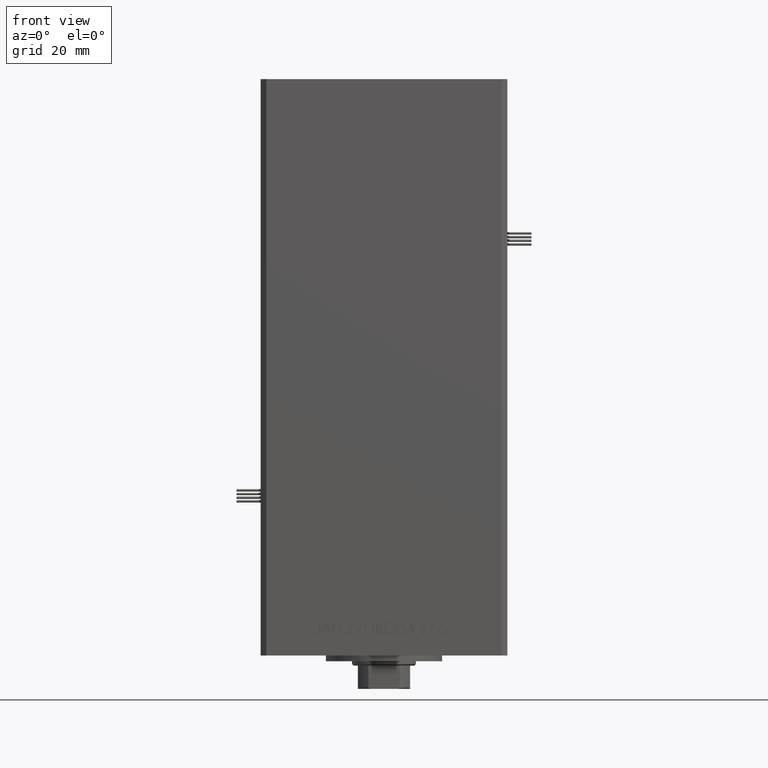
[diagram: clean part render]
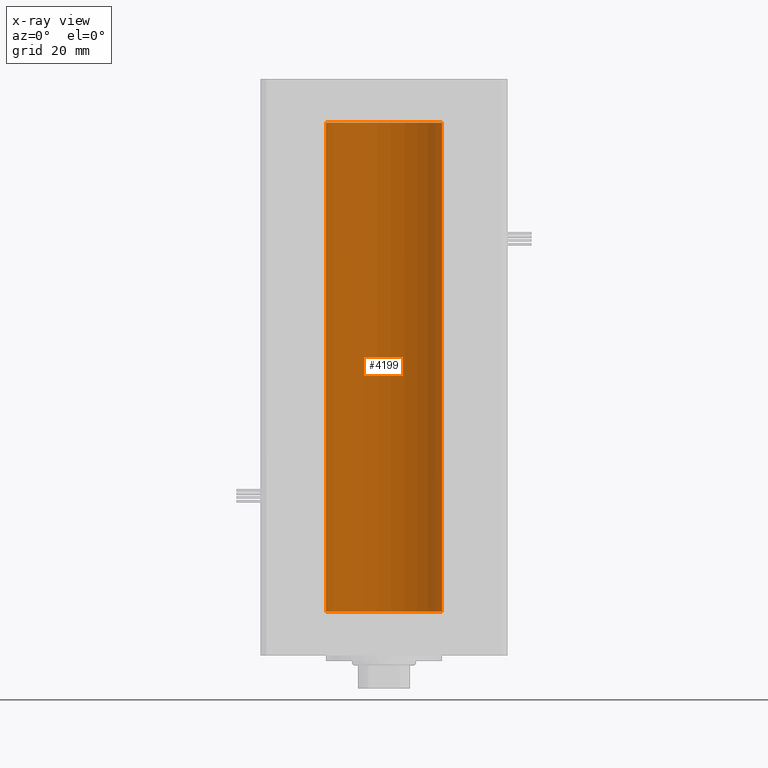
[diagram: x-ray — body ghosted, one internal face saturated and labeled with its STEP entity id]
A machine part, front view, then the same camera in x-ray: the body is ghosted and one INTERNAL B-rep face — a face not visible from any outside direction — is saturated and labeled: STEP entity #4199.
In plain terms, the highlighted cylindrical surface (partial cylindrical patch) has radius 20 mm, axis along (-0, -0, -1).
Its self-contained STEP definition (entity closure, byte-faithful):
#540 = AXIS2_PLACEMENT_3D ( 'NONE', #26419, #39032, #22470 ) ;
#961 = ORIENTED_EDGE ( 'NONE', *, *, #12802, .T. ) ;
#1178 = DIRECTION ( 'NONE',  ( 1.000000000000000000, 0.000000000000000000, 0.000000000000000000 ) ) ;
#1774 = AXIS2_PLACEMENT_3D ( 'NONE', #40862, #45592, #1178 ) ;
#2117 = DIRECTION ( 'NONE',  ( -1.000000000000000000, 0.000000000000000000, 0.000000000000000000 ) ) ;
#2399 = EDGE_CURVE ( 'NONE', #5721, #8705, #8938, .T. ) ;
#4199 = ADVANCED_FACE ( 'NONE', ( #30004 ), #50205, .F. ) ;
#5721 = VERTEX_POINT ( 'NONE', #48578 ) ;
#8705 = VERTEX_POINT ( 'NONE', #19003 ) ;
#8938 = CIRCLE ( 'NONE', #540, 20.00000000000000000 ) ;
#12461 = EDGE_CURVE ( 'NONE', #5721, #44559, #14521, .T. ) ;
#12683 = CIRCLE ( 'NONE', #1774, 20.00000000000000000 ) ;
#12802 = EDGE_CURVE ( 'NONE', #8705, #45498, #35206, .T. ) ;
#13893 = ORIENTED_EDGE ( 'NONE', *, *, #2399, .T. ) ;
#14084 = CARTESIAN_POINT ( 'NONE',  ( -20.00000000000000000, 0.000000000000000000, 0.000000000000000000 ) ) ;
#14521 = LINE ( 'NONE', #42125, #42772 ) ;
#14770 = DIRECTION ( 'NONE',  ( -0.000000000000000000, -0.000000000000000000, -1.000000000000000000 ) ) ;
#15217 = CARTESIAN_POINT ( 'NONE',  ( -20.00000000000000000, 0.000000000000000000, 168.5000000000000000 ) ) ;
#15487 = EDGE_CURVE ( 'NONE', #44559, #45498, #12683, .T. ) ;
#19003 = CARTESIAN_POINT ( 'NONE',  ( -20.00000000000000000, 0.000000000000000000, 168.5000000000000000 ) ) ;
#19305 = ORIENTED_EDGE ( 'NONE', *, *, #15487, .F. ) ;
#19404 = DIRECTION ( 'NONE',  ( -0.000000000000000000, -0.000000000000000000, -1.000000000000000000 ) ) ;
#20074 = ORIENTED_EDGE ( 'NONE', *, *, #12461, .F. ) ;
#22470 = DIRECTION ( 'NONE',  ( 1.000000000000000000, 0.000000000000000000, 0.000000000000000000 ) ) ;
#26419 = CARTESIAN_POINT ( 'NONE',  ( 0.000000000000000000, 0.000000000000000000, 168.5000000000000000 ) ) ;
#30004 = FACE_OUTER_BOUND ( 'NONE', #39403, .T. ) ;
#30182 = CARTESIAN_POINT ( 'NONE',  ( 20.00000000000000000, 2.449293598294706513E-15, 0.000000000000000000 ) ) ;
#30225 = VECTOR ( 'NONE', #19404, 1000.000000000000000 ) ;
#35206 = LINE ( 'NONE', #15217, #30225 ) ;
#39032 = DIRECTION ( 'NONE',  ( -0.000000000000000000, 0.000000000000000000, 1.000000000000000000 ) ) ;
#39403 = EDGE_LOOP ( 'NONE', ( #20074, #13893, #961, #19305 ) ) ;
#40862 = CARTESIAN_POINT ( 'NONE',  ( 0.000000000000000000, 0.000000000000000000, 0.000000000000000000 ) ) ;
#42125 = CARTESIAN_POINT ( 'NONE',  ( 20.00000000000000000, 2.449293598294706513E-15, 168.5000000000000000 ) ) ;
#42772 = VECTOR ( 'NONE', #14770, 1000.000000000000000 ) ;
#44559 = VERTEX_POINT ( 'NONE', #30182 ) ;
#45498 = VERTEX_POINT ( 'NONE', #14084 ) ;
#45592 = DIRECTION ( 'NONE',  ( -0.000000000000000000, 0.000000000000000000, 1.000000000000000000 ) ) ;
#46274 = CARTESIAN_POINT ( 'NONE',  ( 0.000000000000000000, 0.000000000000000000, 168.5000000000000000 ) ) ;
#47560 = AXIS2_PLACEMENT_3D ( 'NONE', #46274, #50460, #2117 ) ;
#48578 = CARTESIAN_POINT ( 'NONE',  ( 20.00000000000000000, 2.449293598294706513E-15, 168.5000000000000000 ) ) ;
#50205 = CYLINDRICAL_SURFACE ( 'NONE', #47560, 20.00000000000000000 ) ;
#50460 = DIRECTION ( 'NONE',  ( -0.000000000000000000, -0.000000000000000000, -1.000000000000000000 ) ) ;